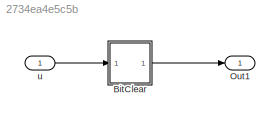
MODEL slx_2734ea4e5c5b
KIND model
CONFIG AbsTol = auto
CONFIG EnableMultiTasking = off
CONFIG FixedStep = 0.200000
CONFIG MaxStep = auto
CONFIG MinStep = auto
CONFIG RelTol = 1e-3
CONFIG SampleTimeConstraint = Unconstrained
CONFIG Solver = FixedStepDiscrete
CONFIG SolverName = FixedStepDiscrete
CONFIG StartTime = 0.0
CONFIG StopTime = 19.8
WORKSPACE source: MAT-file member
WORKSPACE already_pp = 0
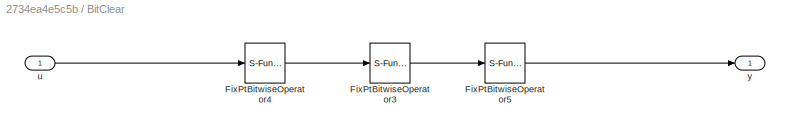
BLOCK [SubSystem] BitClear
  AncestorBlock = simulink/Logic and Bit\nOperations/Bit Clear
  Ports = [1, 1]
  RequestExecContextInheritance = off
  TreatAsAtomicUnit = on
  Variant = off
BLOCK [S-Function] BitClear/FixPtBitwiseOperator3
  AncestorBlock = simulink/Logic and Bit\nOperations/Bitwise\nOperator
  EnableBusSupport = off
  FunctionName = sfix_bitop
  Parameters = UseBitMask,NumInputPorts,BitMask,BitMaskRealWorld,logicop
  Ports = [1, 1]
  SFcnIsStateOwnerBlock = off
  SFunctionDeploymentMode = off
BLOCK [S-Function] BitClear/FixPtBitwiseOperator4
  AncestorBlock = simulink/Logic and Bit\nOperations/Bitwise\nOperator
  EnableBusSupport = off
  FunctionName = sfix_bitop
  Parameters = UseBitMask,NumInputPorts,BitMask,BitMaskRealWorld,logicop
  Ports = [1, 1]
  SFcnIsStateOwnerBlock = off
  SFunctionDeploymentMode = off
BLOCK [S-Function] BitClear/FixPtBitwiseOperator5
  AncestorBlock = simulink/Logic and Bit\nOperations/Bitwise\nOperator
  EnableBusSupport = off
  FunctionName = sfix_bitop
  Parameters = UseBitMask,NumInputPorts,BitMask,BitMaskRealWorld,logicop
  Ports = [1, 1]
  SFcnIsStateOwnerBlock = off
  SFunctionDeploymentMode = off
BLOCK [Inport] BitClear/u
  IconDisplay = Port number
BLOCK [Outport] BitClear/y
  IconDisplay = Port number
BLOCK [Outport] Out1
  IconDisplay = Port number
BLOCK [Inport] u
  IconDisplay = Port number
  OutDataTypeStr = int32
LINE BitClear:1 -> Out1:1
LINE u:1 -> BitClear:1
